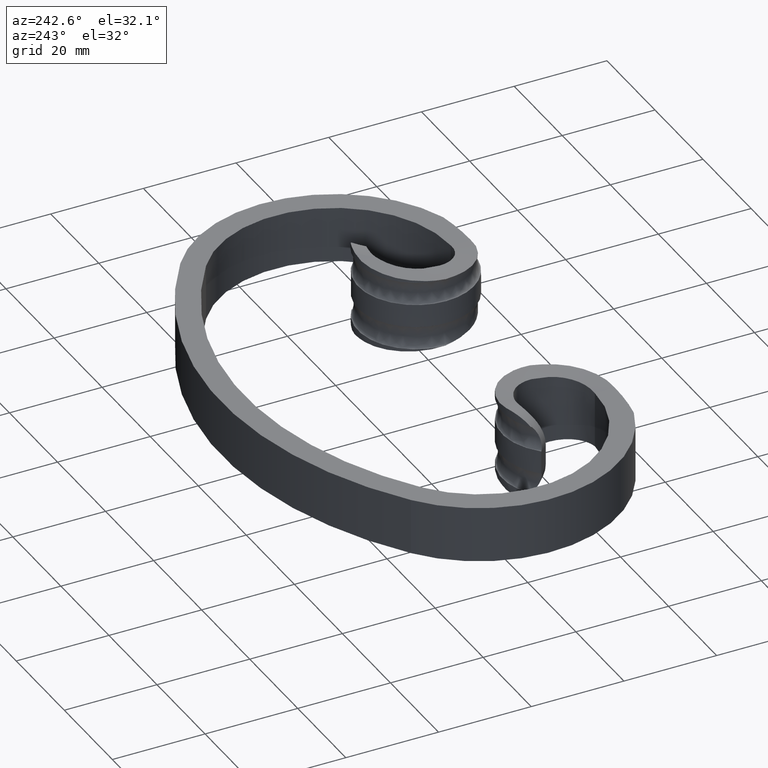
[diagram: clean part render]
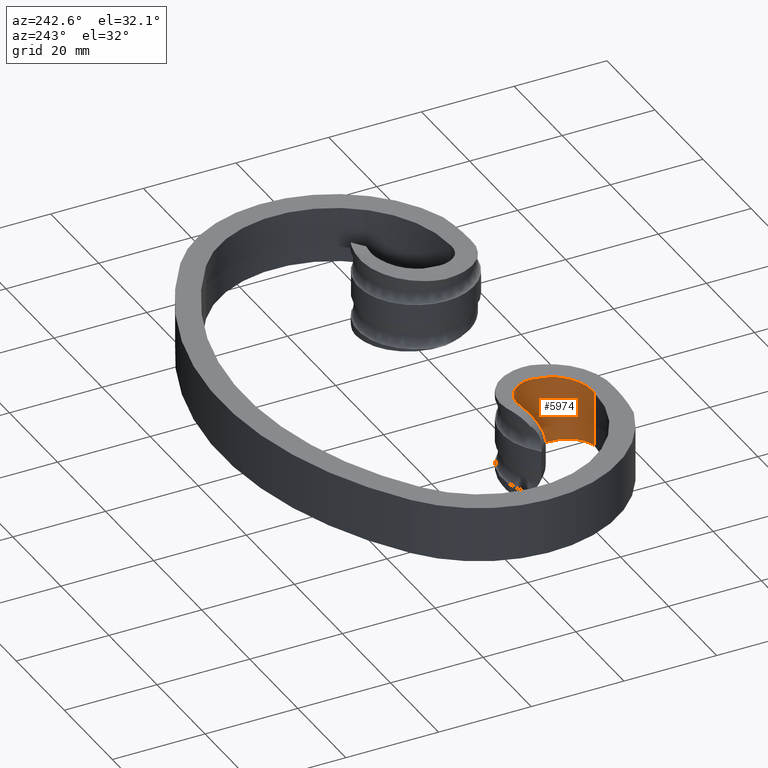
[diagram: same view with one face highlighted and labeled with its STEP entity id]
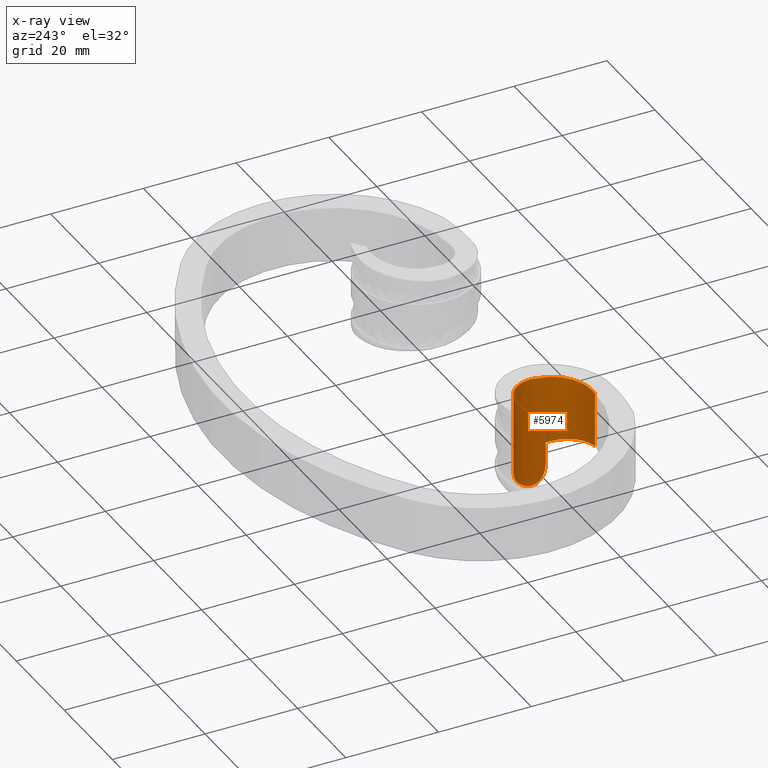
[diagram: x-ray of the same camera — body ghosted, the highlighted face saturated]
A machine part, auxiliary view. The second image highlights one B-rep face of the part: STEP entity #5974.
The next image is the same camera in x-ray: the body ghosted, the highlighted face saturated — about 0% of this face is hidden behind the body in this view.
In plain terms, the highlighted face is a freeform B-spline surface patch.
Its self-contained STEP definition (entity closure, byte-faithful):
#19 = CARTESIAN_POINT ( 'NONE',  ( -30.00000000000001421, -30.00000000000002132, -6.000000000000000000 ) ) ;
#22 = CARTESIAN_POINT ( 'NONE',  ( -24.91216524900500318, -28.03214513041583444, 6.709874349593082599 ) ) ;
#132 = CARTESIAN_POINT ( 'NONE',  ( -26.73787019147028943, -29.32054977625453773, 6.424560353436638671 ) ) ;
#138 = CARTESIAN_POINT ( 'NONE',  ( -36.12892835418598025, -15.25907839693538648, 5.710411840398379901 ) ) ;
#309 = VERTEX_POINT ( 'NONE', #14323 ) ;
#402 = CARTESIAN_POINT ( 'NONE',  ( -36.60271463862686403, -15.68799236092461769, -4.269089052793387573 ) ) ;
#458 = CARTESIAN_POINT ( 'NONE',  ( -34.38456150388912391, -14.06377402392565301, -7.957767725835502404 ) ) ;
#540 = CARTESIAN_POINT ( 'NONE',  ( -32.36268990822524927, -13.28266986555189710, 3.156255749273238376 ) ) ;
#579 = CARTESIAN_POINT ( 'NONE',  ( -22.60331887837866560, -24.17540496336851064, -2.428045940409903292 ) ) ;
#628 = CARTESIAN_POINT ( 'NONE',  ( -25.04454922554348428, -15.27415101873472913, -2.809128358055006824 ) ) ;
#653 = ORIENTED_EDGE ( 'NONE', *, *, #5111, .F. ) ;
#810 = CARTESIAN_POINT ( 'NONE',  ( -36.81488286354547768, -15.88128626120193232, 10.50000000000000000 ) ) ;
#816 = CARTESIAN_POINT ( 'NONE',  ( -24.91216524900500318, -28.03214513041583444, -6.709874349593082599 ) ) ;
#868 = CARTESIAN_POINT ( 'NONE',  ( -31.27125204364176980, -13.06714053999754022, 9.252582323683954613 ) ) ;
#885 = CARTESIAN_POINT ( 'NONE',  ( -24.91216524900500318, -28.03214513041583444, -6.709874349593082599 ) ) ;
#1007 = CARTESIAN_POINT ( 'NONE',  ( -26.73787019147028943, -29.32054977625453773, -6.424560353436651106 ) ) ;
#1065 = ORIENTED_EDGE ( 'NONE', *, *, #5185, .T. ) ;
#1279 = CARTESIAN_POINT ( 'NONE',  ( -22.66033277705136229, -19.00523168492103210, -7.926678528361136955 ) ) ;
#1295 = CARTESIAN_POINT ( 'NONE',  ( -27.61890070010317189, -13.61549951718783724, 8.765554039621409999 ) ) ;
#1300 = CARTESIAN_POINT ( 'NONE',  ( -29.50144395169521871, -13.04923326060335320, 8.923331739963689557 ) ) ;
#1409 = CARTESIAN_POINT ( 'NONE',  ( -23.16216772789521627, -17.81592501377502558, 8.074041126468831209 ) ) ;
#1416 = CARTESIAN_POINT ( 'NONE',  ( -31.56907287469230994, -13.12663198408103504, 8.920462912084270002 ) ) ;
#1473 = EDGE_CURVE ( 'NONE', #2121, #2684, #14336, .T. ) ;
#1594 = VECTOR ( 'NONE', #12607, 1000.000000000000000 ) ;
#1835 = CARTESIAN_POINT ( 'NONE',  ( -34.21304905500635130, -13.96320018671142549, 3.286666385452114536 ) ) ;
#1874 = CARTESIAN_POINT ( 'NONE',  ( -23.16216772789521627, -17.81592501377502558, -2.691347042156278846 ) ) ;
#1892 = CARTESIAN_POINT ( 'NONE',  ( -24.91216524900500318, -28.03214513041583444, 2.236624783197693311 ) ) ;
#1926 = CARTESIAN_POINT ( 'NONE',  ( -34.96593043597886918, -14.38937790542324713, -3.343365893394753652 ) ) ;
#1946 = CARTESIAN_POINT ( 'NONE',  ( -34.96593043597886918, -14.38937790542324535, 3.343365893394729227 ) ) ;
#1996 = CARTESIAN_POINT ( 'NONE',  ( -28.31781936378792608, -29.87157944413147703, 2.071720976722867036 ) ) ;
#2055 = CARTESIAN_POINT ( 'NONE',  ( -24.20019689904339089, -16.18380178780761369, 2.763407998010670052 ) ) ;
#2112 = CARTESIAN_POINT ( 'NONE',  ( -24.46150943870620154, -27.58159455001626625, -6.789954603238907538 ) ) ;
#2121 = VERTEX_POINT ( 'NONE', #14606 ) ;
#2161 = CARTESIAN_POINT ( 'NONE',  ( -33.18675571294060234, -13.52859777426129995, 9.640490742925720724 ) ) ;
#2217 = CARTESIAN_POINT ( 'NONE',  ( -24.46150943870620154, -27.58159455001626625, -2.263318201079635994 ) ) ;
#2245 = CARTESIAN_POINT ( 'NONE',  ( -22.51713781900255640, -22.50284404042620778, -7.501972955348076511 ) ) ;
#2301 = CARTESIAN_POINT ( 'NONE',  ( -25.75158329828650139, -28.70562875349651932, -6.573739090734441071 ) ) ;
#2409 = CARTESIAN_POINT ( 'NONE',  ( -22.32267084358127107, -20.74952735808272308, -7.715965299865274574 ) ) ;
#2485 = CARTESIAN_POINT ( 'NONE',  ( -22.32267084358127107, -20.74952735808272308, 7.715965299865274574 ) ) ;
#2525 = CARTESIAN_POINT ( 'NONE',  ( -22.51713781900255640, -22.50284404042620778, -7.501972955348076511 ) ) ;
#2540 = CARTESIAN_POINT ( 'NONE',  ( -24.46150943870620154, -27.58159455001626625, 6.789954603238907538 ) ) ;
#2590 = B_SPLINE_SURFACE_WITH_KNOTS ( 'NONE', 3, 3, ( 
 ( #11119, #5854, #6022, #5799, #7090, #816, #2112, #12716, #12655, #7618, #2525, #2409, #1279, #4925, #11469, #13802, #7903, #2743, #9137, #11634, #3992, #11687, #7743, #9195, #2843, #5093, #14035, #9032 ),
 ( #14148, #5201, #15669, #7365, #8681, #7303, #2217, #11101, #4740, #579, #9905, #3491, #16206, #1874, #4399, #5679, #628, #10818, #14611, #6964, #11157, #13674, #8618, #15866, #1926, #12112, #4453, #13393 ),
 ( #5951, #5668, #1996, #13904, #16443, #1892, #13357, #9639, #10783, #4573, #14671, #4364, #12077, #13512, #10940, #2055, #7083, #15987, #3320, #6877, #4421, #540, #9485, #1835, #1946, #6981, #5643, #14572 ),
 ( #15885, #14886, #16151, #5847, #5901, #13679, #6016, #8570, #16094, #3545, #4632, #11109, #9853, #3498, #12474, #6067, #15005, #7369, #16267, #12410, #868, #14778, #2161, #14948, #7313, #8459, #8627, #810 ) ),
 .UNSPECIFIED., .F., .F., .F.,
 ( 4, 4 ),
 ( 4, 1, 1, 1, 1, 1, 1, 1, 1, 1, 1, 1, 1, 1, 1, 1, 1, 1, 1, 1, 1, 1, 1, 1, 1, 4 ),
 ( 0.000000000000000000, 1.000000000000000000 ),
 ( 0.000000000000000000, 0.05472547706595852490, 0.1094990022576791261, 0.1603442444018032820, 0.1680122679035718491, 0.2139503224281287530, 0.2215984693380630144, 0.2724172371803667558, 0.3272612679851586437, 0.3818803626398742934, 0.4373225294386829942, 0.4933663638465973222, 0.5463205539180305825, 0.5543446525684676551, 0.6026347198032250274, 0.6107234910109485826, 0.6651096488231309500, 0.7243356616792333558, 0.7842516033235968909, 0.8317491301174028129, 0.8447026138407555118, 0.8791683450731285765, 0.9050562777135264803, 0.9396117123610634447, 0.9525786759562958617, 1.000000000000000000 ),
 .UNSPECIFIED. ) ;
#2592 = CARTESIAN_POINT ( 'NONE',  ( -30.00000000000001421, -30.00000000000001776, 6.000000000000000000 ) ) ;
#2607 = CARTESIAN_POINT ( 'NONE',  ( -36.22279060053640620, -15.34264190054686949, 5.481910161026050332 ) ) ;
#2649 = EDGE_CURVE ( 'NONE', #309, #10810, #8761, .T. ) ;
#2661 = CARTESIAN_POINT ( 'NONE',  ( -30.01391464390838593, -12.99184924669349428, 8.955546270646614460 ) ) ;
#2684 = VERTEX_POINT ( 'NONE', #19 ) ;
#2717 = CARTESIAN_POINT ( 'NONE',  ( -29.24687627597040063, -13.09922039776763292, 8.901863491821016439 ) ) ;
#2743 = CARTESIAN_POINT ( 'NONE',  ( -26.11974478816854983, -14.36852530324291344, -8.571732573753585882 ) ) ;
#2817 = CARTESIAN_POINT ( 'NONE',  ( -28.99349199399076937, -13.16506446481443326, 8.877765462941226815 ) ) ;
#2843 = CARTESIAN_POINT ( 'NONE',  ( -34.96593043597885497, -14.38937790542325068, -10.03009768018423742 ) ) ;
#2885 = CARTESIAN_POINT ( 'NONE',  ( -33.06892136010549166, -13.50466749202200312, -8.605413331503653396 ) ) ;
#2931 = CARTESIAN_POINT ( 'NONE',  ( -30.01763872176544368, -12.99156434782657676, -8.955745630177485594 ) ) ;
#3320 = CARTESIAN_POINT ( 'NONE',  ( -27.91832073404480852, -13.46510087977822145, 2.934755058873249833 ) ) ;
#3401 = CARTESIAN_POINT ( 'NONE',  ( -28.31781936378792608, -29.87157944413147703, -6.215162930168594002 ) ) ;
#3491 = CARTESIAN_POINT ( 'NONE',  ( -22.32267084358127107, -20.74952735808272308, -2.571988433288424414 ) ) ;
#3498 = CARTESIAN_POINT ( 'NONE',  ( -23.16216772789521627, -17.81592501377502558, 8.074041126468831209 ) ) ;
#3515 = CARTESIAN_POINT ( 'NONE',  ( -25.04454922554348428, -15.27415101873472913, -8.427385074165055556 ) ) ;
#3533 = VERTEX_POINT ( 'NONE', #15992 ) ;
#3545 = CARTESIAN_POINT ( 'NONE',  ( -22.60331887837866560, -24.17540496336851064, 7.284137821229713872 ) ) ;
#3614 = CARTESIAN_POINT ( 'NONE',  ( -29.42803735985489055, -29.99747383713739168, -6.071765156833762056 ) ) ;
#3734 = CARTESIAN_POINT ( 'NONE',  ( -25.75158329828650139, -28.70562875349651932, 6.573739090734441071 ) ) ;
#3793 = CARTESIAN_POINT ( 'NONE',  ( -23.76951168671406478, -16.76788694966086624, 8.210165719130079864 ) ) ;
#3850 = CARTESIAN_POINT ( 'NONE',  ( -23.79125328979596077, -26.74643466652431911, 6.926414181796912040 ) ) ;
#3857 = CARTESIAN_POINT ( 'NONE',  ( -36.77114099159911120, -15.84182570195040718, 3.259084853970244389 ) ) ;
#3965 = CARTESIAN_POINT ( 'NONE',  ( -33.94750471474852560, -13.85614035268561572, 8.214409328193831072 ) ) ;
#3992 = CARTESIAN_POINT ( 'NONE',  ( -31.27125204364176980, -13.06714053999754022, -9.252582323683954613 ) ) ;
#4134 = CARTESIAN_POINT ( 'NONE',  ( -33.96910505615812070, -13.85566154864424782, -8.222160346927315899 ) ) ;
#4364 = CARTESIAN_POINT ( 'NONE',  ( -22.32267084358127107, -20.74952735808272308, 2.571988433288425746 ) ) ;
#4399 = CARTESIAN_POINT ( 'NONE',  ( -23.76951168671406478, -16.76788694966086624, -2.736721906376691216 ) ) ;
#4421 = CARTESIAN_POINT ( 'NONE',  ( -31.27125204364176980, -13.06714053999754022, 3.084194107894651982 ) ) ;
#4453 = CARTESIAN_POINT ( 'NONE',  ( -36.40228383995440709, -15.50803644799163372, -3.463323619909314921 ) ) ;
#4573 = CARTESIAN_POINT ( 'NONE',  ( -22.60331887837866560, -24.17540496336851064, 2.428045940409904624 ) ) ;
#4632 = CARTESIAN_POINT ( 'NONE',  ( -22.51713781900255640, -22.50284404042620778, 7.501972955348071181 ) ) ;
#4740 = CARTESIAN_POINT ( 'NONE',  ( -23.18521672786252452, -25.75793740767572615, -2.358577727977142935 ) ) ;
#4771 = CARTESIAN_POINT ( 'NONE',  ( -23.16216772789521627, -17.81592501377502558, -8.074041126468831209 ) ) ;
#4840 = ORIENTED_EDGE ( 'NONE', *, *, #2649, .F. ) ;
#4925 = CARTESIAN_POINT ( 'NONE',  ( -23.16216772789521627, -17.81592501377502558, -8.074041126468831209 ) ) ;
#5033 = EDGE_LOOP ( 'NONE', ( #1065, #12384, #4840, #11568, #653, #5772 ) ) ;
#5093 = CARTESIAN_POINT ( 'NONE',  ( -35.89091121616287694, -15.01514982612720495, -10.24963701165738961 ) ) ;
#5111 = EDGE_CURVE ( 'NONE', #2684, #13977, #15091, .T. ) ;
#5115 = CARTESIAN_POINT ( 'NONE',  ( -36.81488286354547768, -15.88128626120193587, 2.210487969438426070 ) ) ;
#5175 = CARTESIAN_POINT ( 'NONE',  ( -34.35333486352437404, -14.05426844104796480, 7.958580922209024244 ) ) ;
#5185 = EDGE_CURVE ( 'NONE', #2121, #3533, #12555, .T. ) ;
#5201 = CARTESIAN_POINT ( 'NONE',  ( -29.42803735985489055, -29.99747383713739168, -2.023921718944586612 ) ) ;
#5226 = CARTESIAN_POINT ( 'NONE',  ( -35.40762538465124010, -14.67988718674248538, 6.981034276203271993 ) ) ;
#5277 = CARTESIAN_POINT ( 'NONE',  ( -31.82374194572095405, -13.17365845559729998, 8.890697676968388308 ) ) ;
#5499 = CARTESIAN_POINT ( 'NONE',  ( -35.93750666779757097, -15.08676715692534920, -6.151662514498484668 ) ) ;
#5506 = EDGE_CURVE ( 'NONE', #309, #13977, #7283, .T. ) ;
#5613 = CARTESIAN_POINT ( 'NONE',  ( -35.10180459449911439, -14.47799540297896392, -7.333940932257895007 ) ) ;
#5643 = CARTESIAN_POINT ( 'NONE',  ( -36.40228383995440709, -15.50803644799163017, 3.463323619909321582 ) ) ;
#5668 = CARTESIAN_POINT ( 'NONE',  ( -29.42803735985489055, -29.99747383713739168, 2.023921718944587944 ) ) ;
#5679 = CARTESIAN_POINT ( 'NONE',  ( -24.20019689904339089, -16.18380178780761369, -2.763407998010713129 ) ) ;
#5772 = ORIENTED_EDGE ( 'NONE', *, *, #1473, .F. ) ;
#5799 = CARTESIAN_POINT ( 'NONE',  ( -26.73787019147028943, -29.32054977625453773, -6.424560353436651106 ) ) ;
#5847 = CARTESIAN_POINT ( 'NONE',  ( -26.73787019147028943, -29.32054977625453773, 6.424560353436638671 ) ) ;
#5854 = CARTESIAN_POINT ( 'NONE',  ( -29.42803735985489055, -29.99747383713739168, -6.071765156833762056 ) ) ;
#5901 = CARTESIAN_POINT ( 'NONE',  ( -25.75158329828650139, -28.70562875349651932, 6.573739090734441071 ) ) ;
#5927 = CARTESIAN_POINT ( 'NONE',  ( -23.79125328979596077, -26.74643466652431911, -6.926414181796912040 ) ) ;
#5951 = CARTESIAN_POINT ( 'NONE',  ( -30.00000000000001421, -30.00000000000001776, 2.000000000000000000 ) ) ;
#5974 = ADVANCED_FACE ( 'NONE', ( #7349 ), #2590, .T. ) ;
#5980 = CARTESIAN_POINT ( 'NONE',  ( -22.60331887837866560, -24.17540496336851064, -7.284137821229712095 ) ) ;
#6016 = CARTESIAN_POINT ( 'NONE',  ( -24.46150943870620154, -27.58159455001626625, 6.789954603238907538 ) ) ;
#6022 = CARTESIAN_POINT ( 'NONE',  ( -28.31781936378792608, -29.87157944413147703, -6.215162930168594002 ) ) ;
#6067 = CARTESIAN_POINT ( 'NONE',  ( -24.20019689904339089, -16.18380178780761369, 8.290223994032050570 ) ) ;
#6206 = CARTESIAN_POINT ( 'NONE',  ( -28.99349199399076937, -13.16506446481443326, 8.877765462941226815 ) ) ;
#6331 = CARTESIAN_POINT ( 'NONE',  ( -32.57711910141770772, -13.33929462221419193, 8.763953131030882915 ) ) ;
#6377 = CARTESIAN_POINT ( 'NONE',  ( -22.60331887837866560, -24.17540496336851064, 7.284137821229713872 ) ) ;
#6439 = CARTESIAN_POINT ( 'NONE',  ( -28.31781936378792608, -29.87157944413147703, 6.215162930168597555 ) ) ;
#6491 = CARTESIAN_POINT ( 'NONE',  ( -34.54785537535646966, -14.15845816878393926, 7.814568159984268014 ) ) ;
#6853 = CARTESIAN_POINT ( 'NONE',  ( -32.58879075117815916, -13.35447758981902844, -8.746827335484796961 ) ) ;
#6877 = CARTESIAN_POINT ( 'NONE',  ( -29.84805021366487310, -12.87042811111300900, 2.974586146083071814 ) ) ;
#6964 = CARTESIAN_POINT ( 'NONE',  ( -29.84805021366487310, -12.87042811111300900, -2.974586146083072702 ) ) ;
#6981 = CARTESIAN_POINT ( 'NONE',  ( -35.89091121616288405, -15.01514982612719962, 3.416545670552478597 ) ) ;
#7083 = CARTESIAN_POINT ( 'NONE',  ( -25.04454922554348428, -15.27415101873472913, 2.809128358055039687 ) ) ;
#7090 = CARTESIAN_POINT ( 'NONE',  ( -25.75158329828650139, -28.70562875349651932, -6.573739090734441071 ) ) ;
#7227 = EDGE_CURVE ( 'NONE', #3533, #10810, #10326, .T. ) ;
#7280 = CARTESIAN_POINT ( 'NONE',  ( -23.76951168671406478, -16.76788694966086624, -8.210165719130078088 ) ) ;
#7283 = B_SPLINE_CURVE_WITH_KNOTS ( 'NONE', 3,
 ( #8215, #9455, #11890, #402, #11998, #9349, #5499, #14444, #5613, #458, #4134, #14496, #2885, #6853, #11835, #15765, #7999, #13071, #9294, #10544, #2931, #13119, #14601, #12103 ),
 .UNSPECIFIED., .F., .F.,
 ( 4, 2, 2, 2, 2, 2, 2, 2, 2, 2, 2, 4 ),
 ( 0.000000000000000000, 0.001558212430642226315, 0.003116424861284451762, 0.004674637291926677859, 0.006232849722568905258, 0.007791062153211131790, 0.008570168368532244188, 0.009349274583853357454, 0.01012838079917447072, 0.01090748701449558399, 0.01168659322981669725, 0.01246569944513781052 ),
 .UNSPECIFIED. ) ;
#7303 = CARTESIAN_POINT ( 'NONE',  ( -24.91216524900500318, -28.03214513041583444, -2.236624783197693311 ) ) ;
#7313 = CARTESIAN_POINT ( 'NONE',  ( -34.96593043597886918, -14.38937790542324002, 10.03009768018421077 ) ) ;
#7349 = FACE_OUTER_BOUND ( 'NONE', #5033, .T. ) ;
#7365 = CARTESIAN_POINT ( 'NONE',  ( -26.73787019147028943, -29.32054977625453773, -2.141520117812220736 ) ) ;
#7369 = CARTESIAN_POINT ( 'NONE',  ( -26.11974478816854983, -14.36852530324291344, 8.571732573753575224 ) ) ;
#7391 = CARTESIAN_POINT ( 'NONE',  ( -22.66033277705136229, -19.00523168492103210, -7.926678528361136955 ) ) ;
#7618 = CARTESIAN_POINT ( 'NONE',  ( -22.60331887837866560, -24.17540496336851064, -7.284137821229712095 ) ) ;
#7645 = CARTESIAN_POINT ( 'NONE',  ( -35.80036533960589651, -14.98110109634351161, 6.367832280540323353 ) ) ;
#7743 = CARTESIAN_POINT ( 'NONE',  ( -33.18675571294061655, -13.52859777426131060, -9.640490742925717171 ) ) ;
#7760 = CARTESIAN_POINT ( 'NONE',  ( -25.04454922554348428, -15.27415101873472913, 8.427385074165085754 ) ) ;
#7903 = CARTESIAN_POINT ( 'NONE',  ( -25.04454922554348428, -15.27415101873472913, -8.427385074165055556 ) ) ;
#7999 = CARTESIAN_POINT ( 'NONE',  ( -31.57895367598272074, -13.12843613676696464, -8.919421999963923042 ) ) ;
#8215 = CARTESIAN_POINT ( 'NONE',  ( -36.81488286354547057, -15.88128626120193587, -2.210487969438427847 ) ) ;
#8459 = CARTESIAN_POINT ( 'NONE',  ( -35.89091121616288405, -15.01514982612720495, 10.24963701165741270 ) ) ;
#8552 = VECTOR ( 'NONE', #10101, 1000.000000000000000 ) ;
#8570 = CARTESIAN_POINT ( 'NONE',  ( -23.79125328979596077, -26.74643466652431911, 6.926414181796912040 ) ) ;
#8618 = CARTESIAN_POINT ( 'NONE',  ( -33.18675571294061655, -13.52859777426131060, -3.213496914308572094 ) ) ;
#8627 = CARTESIAN_POINT ( 'NONE',  ( -36.40228383995440709, -15.50803644799163195, 10.38997085972795986 ) ) ;
#8681 = CARTESIAN_POINT ( 'NONE',  ( -25.75158329828650139, -28.70562875349651932, -2.191246363578148060 ) ) ;
#8758 = CARTESIAN_POINT ( 'NONE',  ( -28.99349199399077648, -13.16506446481443149, -8.877765462941223262 ) ) ;
#8761 = LINE ( 'NONE', #8991, #8552 ) ;
#8821 = CARTESIAN_POINT ( 'NONE',  ( -22.51713781900255640, -22.50284404042620778, 7.501972955348071181 ) ) ;
#8880 = CARTESIAN_POINT ( 'NONE',  ( -24.20019689904339089, -16.18380178780761369, 8.290223994032050570 ) ) ;
#8991 = CARTESIAN_POINT ( 'NONE',  ( -36.81488286354547768, -15.88128626120193232, 10.50000000000000000 ) ) ;
#9032 = CARTESIAN_POINT ( 'NONE',  ( -36.81488286354547057, -15.88128626120193942, -10.49999999999999645 ) ) ;
#9048 = CARTESIAN_POINT ( 'NONE',  ( -23.18521672786252452, -25.75793740767572615, 7.075733183931426140 ) ) ;
#9059 = CARTESIAN_POINT ( 'NONE',  ( -36.39046442844286844, -15.49365560439477285, 5.010587931394275607 ) ) ;
#9137 = CARTESIAN_POINT ( 'NONE',  ( -27.91832073404480852, -13.46510087977822145, -8.804265176619741951 ) ) ;
#9195 = CARTESIAN_POINT ( 'NONE',  ( -34.21304905500633708, -13.96320018671142726, -9.859999156356325400 ) ) ;
#9294 = CARTESIAN_POINT ( 'NONE',  ( -30.80302973341048300, -13.01479292089707407, -8.967861319778025475 ) ) ;
#9349 = CARTESIAN_POINT ( 'NONE',  ( -36.14193849697714711, -15.26978950691161430, -5.710245294902152935 ) ) ;
#9455 = CARTESIAN_POINT ( 'NONE',  ( -36.81488286354545636, -15.88128626120194653, -2.737300199081691421 ) ) ;
#9485 = CARTESIAN_POINT ( 'NONE',  ( -33.18675571294060234, -13.52859777426131060, 3.213496914308574759 ) ) ;
#9639 = CARTESIAN_POINT ( 'NONE',  ( -23.79125328979596077, -26.74643466652431911, 2.308804727265637791 ) ) ;
#9817 = CARTESIAN_POINT ( 'NONE',  ( -28.63746205442224735, -13.25758188155578488, -8.843905352524105368 ) ) ;
#9853 = CARTESIAN_POINT ( 'NONE',  ( -22.66033277705136229, -19.00523168492103210, 7.926678528361136955 ) ) ;
#9878 = CARTESIAN_POINT ( 'NONE',  ( -29.42803735985489055, -29.99747383713739168, 6.071765156833762944 ) ) ;
#9905 = CARTESIAN_POINT ( 'NONE',  ( -22.51713781900255640, -22.50284404042620778, -2.500657651782694835 ) ) ;
#10101 = DIRECTION ( 'NONE',  ( -3.304235192336776005E-16, 3.304235192336776005E-16, 1.000000000000000000 ) ) ;
#10102 = CARTESIAN_POINT ( 'NONE',  ( -26.11974478816854983, -14.36852530324291344, 8.571732573753575224 ) ) ;
#10217 = CARTESIAN_POINT ( 'NONE',  ( -28.63746205442224024, -13.25758188155579020, 8.843905352524107144 ) ) ;
#10326 = B_SPLINE_CURVE_WITH_KNOTS ( 'NONE', 3,
 ( #2817, #2717, #1300, #2661, #10431, #11707, #12740, #1416, #5277, #6331, #15277, #15332, #3965, #5175, #6491, #14111, #5226, #7645, #11553, #138, #2607, #9059, #11497, #14222, #15482, #3857, #12798, #5115 ),
 .UNSPECIFIED., .F., .F.,
 ( 4, 2, 2, 2, 2, 2, 2, 2, 2, 2, 2, 2, 2, 4 ),
 ( 0.000000000000000000, 0.0007741174737329125461, 0.001548234947465825092, 0.002322352421198737530, 0.003096469894931650185, 0.004644704842397455111, 0.005418822316130365163, 0.006192939789863276083, 0.007741174737329093586, 0.008515292211062003638, 0.009289409684794911956, 0.01006352715852782201, 0.01083764463226073206, 0.01238587957972655910 ),
 .UNSPECIFIED. ) ;
#10431 = CARTESIAN_POINT ( 'NONE',  ( -30.27197745495896442, -12.98661195208372732, 8.965966443665118746 ) ) ;
#10544 = CARTESIAN_POINT ( 'NONE',  ( -30.27785718342606813, -12.98652420420738096, -8.966196503004566054 ) ) ;
#10783 = CARTESIAN_POINT ( 'NONE',  ( -23.18521672786252452, -25.75793740767572615, 2.358577727977142935 ) ) ;
#10810 = VERTEX_POINT ( 'NONE', #15001 ) ;
#10818 = CARTESIAN_POINT ( 'NONE',  ( -26.11974478816854983, -14.36852530324291344, -2.857244191251201215 ) ) ;
#10940 = CARTESIAN_POINT ( 'NONE',  ( -23.76951168671406478, -16.76788694966086624, 2.736721906376693880 ) ) ;
#11071 = CARTESIAN_POINT ( 'NONE',  ( -28.99349199399077648, -13.16506446481443149, -8.877765462941223262 ) ) ;
#11101 = CARTESIAN_POINT ( 'NONE',  ( -23.79125328979596077, -26.74643466652431911, -2.308804727265637791 ) ) ;
#11109 = CARTESIAN_POINT ( 'NONE',  ( -22.32267084358127107, -20.74952735808272308, 7.715965299865274574 ) ) ;
#11119 = CARTESIAN_POINT ( 'NONE',  ( -30.00000000000001421, -30.00000000000001776, -6.000000000000000888 ) ) ;
#11157 = CARTESIAN_POINT ( 'NONE',  ( -31.27125204364176980, -13.06714053999754022, -3.084194107894651982 ) ) ;
#11184 = CARTESIAN_POINT ( 'NONE',  ( -23.18521672786252452, -25.75793740767572615, -7.075733183931427916 ) ) ;
#11427 = CARTESIAN_POINT ( 'NONE',  ( -22.66033277705136229, -19.00523168492103210, 7.926678528361136955 ) ) ;
#11469 = CARTESIAN_POINT ( 'NONE',  ( -23.76951168671406478, -16.76788694966086624, -8.210165719130078088 ) ) ;
#11497 = CARTESIAN_POINT ( 'NONE',  ( -36.46457464587756903, -15.56143995560781690, 4.766349066511835986 ) ) ;
#11553 = CARTESIAN_POINT ( 'NONE',  ( -35.91806010224782852, -15.07861526121174833, 6.152805509234474002 ) ) ;
#11568 = ORIENTED_EDGE ( 'NONE', *, *, #5506, .T. ) ;
#11634 = CARTESIAN_POINT ( 'NONE',  ( -29.84805021366487310, -12.87042811111300900, -8.923758438249217662 ) ) ;
#11687 = CARTESIAN_POINT ( 'NONE',  ( -32.36268990822524927, -13.28266986555190243, -9.468767247819716459 ) ) ;
#11707 = CARTESIAN_POINT ( 'NONE',  ( -30.79144964119636896, -13.01377870525457325, 8.968029038633559935 ) ) ;
#11835 = CARTESIAN_POINT ( 'NONE',  ( -32.33856372402743062, -13.28719412710196046, -8.803657789676316625 ) ) ;
#11890 = CARTESIAN_POINT ( 'NONE',  ( -36.77167808231401125, -15.84231341009192562, -3.254250433641288964 ) ) ;
#11998 = CARTESIAN_POINT ( 'NONE',  ( -36.47509965955041622, -15.56991561904272459, -4.771606484133301684 ) ) ;
#12077 = CARTESIAN_POINT ( 'NONE',  ( -22.66033277705136229, -19.00523168492103210, 2.642226176120379133 ) ) ;
#12103 = CARTESIAN_POINT ( 'NONE',  ( -28.99349199399077648, -13.16506446481443149, -8.877765462941223262 ) ) ;
#12112 = CARTESIAN_POINT ( 'NONE',  ( -35.89091121616288405, -15.01514982612720495, -3.416545670552455505 ) ) ;
#12384 = ORIENTED_EDGE ( 'NONE', *, *, #7227, .T. ) ;
#12410 = CARTESIAN_POINT ( 'NONE',  ( -29.84805021366487310, -12.87042811111300900, 8.923758438249217662 ) ) ;
#12474 = CARTESIAN_POINT ( 'NONE',  ( -23.76951168671406478, -16.76788694966086624, 8.210165719130079864 ) ) ;
#12493 = CARTESIAN_POINT ( 'NONE',  ( -24.20019689904339089, -16.18380178780761369, -8.290223994032091426 ) ) ;
#12555 = B_SPLINE_CURVE_WITH_KNOTS ( 'NONE', 3,
 ( #13819, #9878, #6439, #132, #3734, #22, #2540, #3850, #9048, #6377, #8821, #2485, #11427, #1409, #3793, #8880, #7760, #10102, #1295, #10217, #6206 ),
 .UNSPECIFIED., .F., .F.,
 ( 4, 1, 1, 1, 1, 1, 1, 1, 1, 1, 1, 1, 1, 1, 1, 1, 1, 1, 4 ),
 ( 0.000000000000000000, 0.05472547706595853184, 0.1094990022576791122, 0.1603442444018032820, 0.1680122679035718491, 0.2139503224281287530, 0.2215984693380630144, 0.2724172371803667558, 0.3272612679851586437, 0.3818803626398742934, 0.4373225294386829387, 0.4933663638465973222, 0.5463205539180305825, 0.5543446525684676551, 0.6026347198032250274, 0.6107234910109485826, 0.6651096488231310611, 0.7243356616792333558, 0.7553633078931987210 ),
 .UNSPECIFIED. ) ;
#12607 = DIRECTION ( 'NONE',  ( -0.000000000000000000, 0.000000000000000000, -1.000000000000000000 ) ) ;
#12655 = CARTESIAN_POINT ( 'NONE',  ( -23.18521672786252452, -25.75793740767572615, -7.075733183931427916 ) ) ;
#12716 = CARTESIAN_POINT ( 'NONE',  ( -23.79125328979596077, -26.74643466652431911, -6.926414181796912040 ) ) ;
#12740 = CARTESIAN_POINT ( 'NONE',  ( -31.05401195547948490, -13.04554203268908985, 8.959472772150038011 ) ) ;
#12798 = CARTESIAN_POINT ( 'NONE',  ( -36.81488286354548478, -15.88128626120193232, 2.737403779475552579 ) ) ;
#13071 = CARTESIAN_POINT ( 'NONE',  ( -31.06429859017962869, -13.04692256219507662, -8.958974995024693300 ) ) ;
#13119 = CARTESIAN_POINT ( 'NONE',  ( -29.50238069766101745, -13.04899745219029761, -8.923425052754126341 ) ) ;
#13357 = CARTESIAN_POINT ( 'NONE',  ( -24.46150943870620154, -27.58159455001626625, 2.263318201079635994 ) ) ;
#13393 = CARTESIAN_POINT ( 'NONE',  ( -36.81488286354547768, -15.88128626120193587, -3.499999999999997780 ) ) ;
#13512 = CARTESIAN_POINT ( 'NONE',  ( -23.16216772789521627, -17.81592501377502558, 2.691347042156277070 ) ) ;
#13579 = CARTESIAN_POINT ( 'NONE',  ( -24.46150943870620154, -27.58159455001626625, -6.789954603238907538 ) ) ;
#13674 = CARTESIAN_POINT ( 'NONE',  ( -32.36268990822524927, -13.28266986555189710, -3.156255749273238376 ) ) ;
#13679 = CARTESIAN_POINT ( 'NONE',  ( -24.91216524900500318, -28.03214513041583444, 6.709874349593082599 ) ) ;
#13697 = CARTESIAN_POINT ( 'NONE',  ( -30.00000000000001421, -30.00000000000002132, -6.000000000000000000 ) ) ;
#13802 = CARTESIAN_POINT ( 'NONE',  ( -24.20019689904339089, -16.18380178780761369, -8.290223994032091426 ) ) ;
#13819 = CARTESIAN_POINT ( 'NONE',  ( -30.00000000000001421, -30.00000000000002132, 6.000000000000000000 ) ) ;
#13904 = CARTESIAN_POINT ( 'NONE',  ( -26.73787019147028943, -29.32054977625453773, 2.141520117812207857 ) ) ;
#13977 = VERTEX_POINT ( 'NONE', #8758 ) ;
#14035 = CARTESIAN_POINT ( 'NONE',  ( -36.40228383995439998, -15.50803644799163727, -10.38997085972795276 ) ) ;
#14111 = CARTESIAN_POINT ( 'NONE',  ( -35.09472463619123772, -14.47318811958971629, 7.342324379789307187 ) ) ;
#14148 = CARTESIAN_POINT ( 'NONE',  ( -30.00000000000001421, -30.00000000000001776, -2.000000000000000000 ) ) ;
#14222 = CARTESIAN_POINT ( 'NONE',  ( -36.59136761669110882, -15.67746481990360863, 4.270793342291413275 ) ) ;
#14323 = CARTESIAN_POINT ( 'NONE',  ( -36.81488286354547057, -15.88128626120193587, -2.210487969438427847 ) ) ;
#14336 = LINE ( 'NONE', #2592, #1594 ) ;
#14444 = CARTESIAN_POINT ( 'NONE',  ( -35.41405600021486322, -14.68434595177568269, -6.972990104057052108 ) ) ;
#14496 = CARTESIAN_POINT ( 'NONE',  ( -33.30030935067012621, -13.58770460586965889, -8.520782118787671777 ) ) ;
#14572 = CARTESIAN_POINT ( 'NONE',  ( -36.81488286354547768, -15.88128626120193232, 3.500000000000001332 ) ) ;
#14601 = CARTESIAN_POINT ( 'NONE',  ( -29.24710845878636789, -13.09916006308238501, -8.901885573491437498 ) ) ;
#14606 = CARTESIAN_POINT ( 'NONE',  ( -30.00000000000001421, -30.00000000000002132, 6.000000000000000000 ) ) ;
#14611 = CARTESIAN_POINT ( 'NONE',  ( -27.91832073404480852, -13.46510087977822145, -2.934755058873245837 ) ) ;
#14671 = CARTESIAN_POINT ( 'NONE',  ( -22.51713781900255640, -22.50284404042620778, 2.500657651782689506 ) ) ;
#14778 = CARTESIAN_POINT ( 'NONE',  ( -32.36268990822524927, -13.28266986555189710, 9.468767247819716459 ) ) ;
#14886 = CARTESIAN_POINT ( 'NONE',  ( -29.42803735985489055, -29.99747383713739168, 6.071765156833762944 ) ) ;
#14948 = CARTESIAN_POINT ( 'NONE',  ( -34.21304905500635130, -13.96320018671142726, 9.859999156356334282 ) ) ;
#14967 = CARTESIAN_POINT ( 'NONE',  ( -26.11974478816854983, -14.36852530324291699, -8.571732573753585882 ) ) ;
#15001 = CARTESIAN_POINT ( 'NONE',  ( -36.81488286354547768, -15.88128626120193587, 2.210487969438426070 ) ) ;
#15005 = CARTESIAN_POINT ( 'NONE',  ( -25.04454922554348428, -15.27415101873472913, 8.427385074165085754 ) ) ;
#15091 = B_SPLINE_CURVE_WITH_KNOTS ( 'NONE', 3,
 ( #13697, #3614, #3401, #1007, #2301, #885, #13579, #5927, #11184, #5980, #2245, #16119, #7391, #4771, #7280, #12493, #3515, #14967, #16234, #9817, #11071 ),
 .UNSPECIFIED., .F., .F.,
 ( 4, 1, 1, 1, 1, 1, 1, 1, 1, 1, 1, 1, 1, 1, 1, 1, 1, 1, 4 ),
 ( 0.000000000000000000, 0.05472547706595852490, 0.1094990022576791261, 0.1603442444018032820, 0.1680122679035718491, 0.2139503224281287530, 0.2215984693380629866, 0.2724172371803667558, 0.3272612679851586437, 0.3818803626398742934, 0.4373225294386829942, 0.4933663638465973222, 0.5463205539180305825, 0.5543446525684676551, 0.6026347198032250274, 0.6107234910109485826, 0.6651096488231310611, 0.7243356616792333558, 0.7553633078931989431 ),
 .UNSPECIFIED. ) ;
#15277 = CARTESIAN_POINT ( 'NONE',  ( -33.06784233462289535, -13.49519619795423253, 8.623375026960177436 ) ) ;
#15332 = CARTESIAN_POINT ( 'NONE',  ( -33.73494164274965357, -13.76153837664360857, 8.327297032653195430 ) ) ;
#15482 = CARTESIAN_POINT ( 'NONE',  ( -36.64404427250872232, -15.72573892424692765, 4.020036941773747152 ) ) ;
#15669 = CARTESIAN_POINT ( 'NONE',  ( -28.31781936378792608, -29.87157944413147703, -2.071720976722863483 ) ) ;
#15765 = CARTESIAN_POINT ( 'NONE',  ( -31.83407005237790699, -13.17559670931186311, -8.889369869086257481 ) ) ;
#15866 = CARTESIAN_POINT ( 'NONE',  ( -34.21304905500633708, -13.96320018671142549, -3.286666385452103878 ) ) ;
#15885 = CARTESIAN_POINT ( 'NONE',  ( -30.00000000000001421, -30.00000000000001776, 6.000000000000000888 ) ) ;
#15987 = CARTESIAN_POINT ( 'NONE',  ( -26.11974478816854983, -14.36852530324291344, 2.857244191251186116 ) ) ;
#15992 = CARTESIAN_POINT ( 'NONE',  ( -28.99349199399076937, -13.16506446481443326, 8.877765462941226815 ) ) ;
#16094 = CARTESIAN_POINT ( 'NONE',  ( -23.18521672786252452, -25.75793740767572615, 7.075733183931426140 ) ) ;
#16119 = CARTESIAN_POINT ( 'NONE',  ( -22.32267084358127107, -20.74952735808272308, -7.715965299865274574 ) ) ;
#16151 = CARTESIAN_POINT ( 'NONE',  ( -28.31781936378792608, -29.87157944413147703, 6.215162930168597555 ) ) ;
#16206 = CARTESIAN_POINT ( 'NONE',  ( -22.66033277705136229, -19.00523168492103210, -2.642226176120379133 ) ) ;
#16234 = CARTESIAN_POINT ( 'NONE',  ( -27.61890070010317189, -13.61549951718783191, -8.765554039621408222 ) ) ;
#16267 = CARTESIAN_POINT ( 'NONE',  ( -27.91832073404480852, -13.46510087977822145, 8.804265176619745503 ) ) ;
#16443 = CARTESIAN_POINT ( 'NONE',  ( -25.75158329828650139, -28.70562875349651932, 2.191246363578148060 ) ) ;